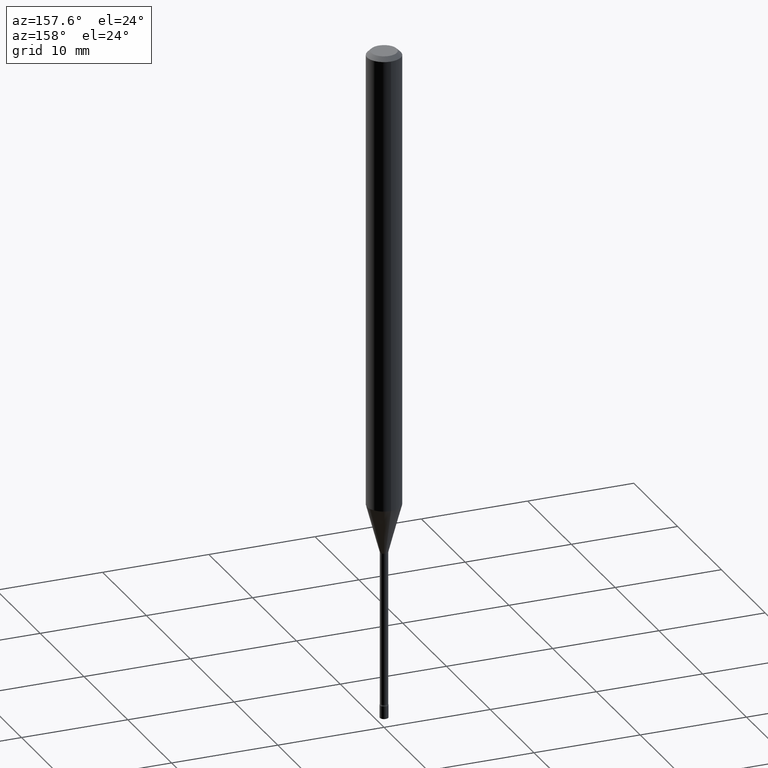
[diagram: clean part render]
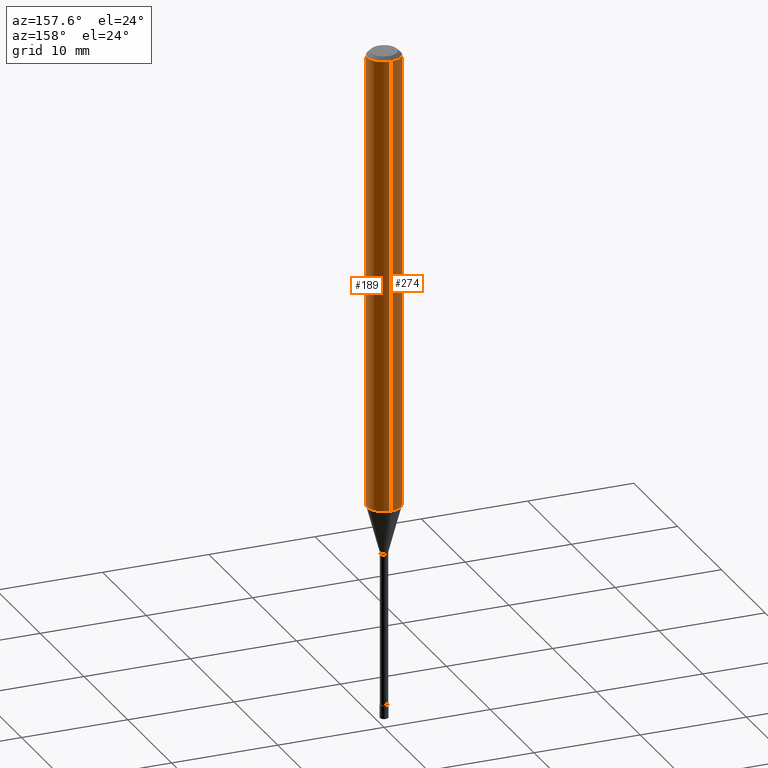
[diagram: same view with one multi-face feature highlighted, each face labeled with its STEP entity id]
A machine part, auxiliary view. The highlighted faces form ONE feature: a constant-radius fillet chain: 2 tangent blend faces with common blend radius 1.5875 mm. The faces share edges in the B-rep.
Their STEP definitions:
[1] entity #274 (Cylinder):
#6 = VECTOR ( 'NONE', #283, 39.37007874015748143 ) ;
#11 = CIRCLE ( 'NONE', #351, 0.06250000000000000000 ) ;
#36 = LINE ( 'NONE', #117, #314 ) ;
#37 = DIRECTION ( 'NONE',  ( -6.982962677686265922E-15, -1.000000000000000000, 3.483106191921935554E-15 ) ) ;
#43 = CARTESIAN_POINT ( 'NONE',  ( -4.364351673553912750E-16, -0.06250000000000005551, -0.01499999999999981209 ) ) ;
#46 = ORIENTED_EDGE ( 'NONE', *, *, #113, .F. ) ;
#59 = CIRCLE ( 'NONE', #86, 0.06250000000000000000 ) ;
#81 = VERTEX_POINT ( 'NONE', #43 ) ;
#86 = AXIS2_PLACEMENT_3D ( 'NONE', #510, #224, #37 ) ;
#105 = LINE ( 'NONE', #504, #6 ) ;
#113 = EDGE_CURVE ( 'NONE', #214, #391, #36, .T. ) ;
#117 = CARTESIAN_POINT ( 'NONE',  ( 4.440892098500625669E-16, 0.06250000000000000000, -2.182168642905131415E-16 ) ) ;
#122 = CARTESIAN_POINT ( 'NONE',  ( 0.000000000000000000, 0.000000000000000000, 0.000000000000000000 ) ) ;
#138 = ORIENTED_EDGE ( 'NONE', *, *, #263, .T. ) ;
#166 = ORIENTED_EDGE ( 'NONE', *, *, #417, .F. ) ;
#169 = DIRECTION ( 'NONE',  ( -2.445476843711301274E-29, 3.491469828648210264E-15, 1.000000000000000000 ) ) ;
#200 = CARTESIAN_POINT ( 'NONE',  ( -4.364351673553500570E-16, -0.06250000000000595357, -1.701048163777072464 ) ) ;
#204 = CARTESIAN_POINT ( 'NONE',  ( 4.440892098501044258E-16, 0.06249999999999995143, -0.01500000000000024751 ) ) ;
#214 = VERTEX_POINT ( 'NONE', #256 ) ;
#216 = CARTESIAN_POINT ( 'NONE',  ( 4.159873894554460783E-29, -5.939158340905088868E-15, -1.701048163777072908 ) ) ;
#224 = DIRECTION ( 'NONE',  ( -2.445476843711301274E-29, 3.491469828648210264E-15, 1.000000000000000000 ) ) ;
#225 = DIRECTION ( 'NONE',  ( -6.982962677686265922E-15, -1.000000000000000000, 4.370956789862821150E-15 ) ) ;
#256 = CARTESIAN_POINT ( 'NONE',  ( 4.440892098501039328E-16, 0.06249999999999404643, -1.701048163777073130 ) ) ;
#263 = EDGE_CURVE ( 'NONE', #214, #509, #11, .T. ) ;
#274 = ADVANCED_FACE ( 'NONE', ( #313 ), #379, .T. ) ;
#283 = DIRECTION ( 'NONE',  ( -2.445476843711301274E-29, 3.491469828648210264E-15, 1.000000000000000000 ) ) ;
#305 = DIRECTION ( 'NONE',  ( -6.982962677686265922E-15, -1.000000000000000000, 3.491469828648210264E-15 ) ) ;
#306 = EDGE_CURVE ( 'NONE', #509, #81, #105, .T. ) ;
#313 = FACE_OUTER_BOUND ( 'NONE', #387, .T. ) ;
#314 = VECTOR ( 'NONE', #424, 39.37007874015748143 ) ;
#351 = AXIS2_PLACEMENT_3D ( 'NONE', #216, #488, #225 ) ;
#364 = AXIS2_PLACEMENT_3D ( 'NONE', #122, #169, #305 ) ;
#379 = CYLINDRICAL_SURFACE ( 'NONE', #364, 0.06250000000000000000 ) ;
#380 = ORIENTED_EDGE ( 'NONE', *, *, #306, .T. ) ;
#387 = EDGE_LOOP ( 'NONE', ( #46, #138, #380, #166 ) ) ;
#391 = VERTEX_POINT ( 'NONE', #204 ) ;
#417 = EDGE_CURVE ( 'NONE', #391, #81, #59, .T. ) ;
#424 = DIRECTION ( 'NONE',  ( -2.445476843711301274E-29, 3.491469828648210264E-15, 1.000000000000000000 ) ) ;
#488 = DIRECTION ( 'NONE',  ( -2.445476843711301274E-29, 3.491469828648210264E-15, 1.000000000000000000 ) ) ;
#504 = CARTESIAN_POINT ( 'NONE',  ( -4.364351673553916201E-16, -0.06250000000000000000, 2.182168642905131415E-16 ) ) ;
#509 = VERTEX_POINT ( 'NONE', #200 ) ;
#510 = CARTESIAN_POINT ( 'NONE',  ( 3.668215265566959268E-31, -5.237204742972325603E-17, -0.01500000000000003067 ) ) ;
[2] entity #189 (Cylinder):
#6 = VECTOR ( 'NONE', #283, 39.37007874015748143 ) ;
#17 = ORIENTED_EDGE ( 'NONE', *, *, #306, .F. ) ;
#28 = AXIS2_PLACEMENT_3D ( 'NONE', #65, #335, #442 ) ;
#36 = LINE ( 'NONE', #117, #314 ) ;
#43 = CARTESIAN_POINT ( 'NONE',  ( -4.364351673553912750E-16, -0.06250000000000005551, -0.01499999999999981209 ) ) ;
#48 = EDGE_LOOP ( 'NONE', ( #91, #453, #501, #17 ) ) ;
#58 = DIRECTION ( 'NONE',  ( -2.445476843711301274E-29, 3.491469828648210264E-15, 1.000000000000000000 ) ) ;
#65 = CARTESIAN_POINT ( 'NONE',  ( 3.668215265566959268E-31, -5.237204742972325603E-17, -0.01500000000000003067 ) ) ;
#81 = VERTEX_POINT ( 'NONE', #43 ) ;
#82 = FACE_OUTER_BOUND ( 'NONE', #48, .T. ) ;
#91 = ORIENTED_EDGE ( 'NONE', *, *, #482, .T. ) ;
#94 = AXIS2_PLACEMENT_3D ( 'NONE', #103, #58, #151 ) ;
#103 = CARTESIAN_POINT ( 'NONE',  ( 0.000000000000000000, 0.000000000000000000, 0.000000000000000000 ) ) ;
#105 = LINE ( 'NONE', #504, #6 ) ;
#113 = EDGE_CURVE ( 'NONE', #214, #391, #36, .T. ) ;
#117 = CARTESIAN_POINT ( 'NONE',  ( 4.440892098500625669E-16, 0.06250000000000000000, -2.182168642905131415E-16 ) ) ;
#151 = DIRECTION ( 'NONE',  ( -6.982962677686265922E-15, -1.000000000000000000, 3.491469828648210264E-15 ) ) ;
#153 = DIRECTION ( 'NONE',  ( -2.445476843711301274E-29, 3.491469828648210264E-15, 1.000000000000000000 ) ) ;
#187 = CIRCLE ( 'NONE', #235, 0.06250000000000000000 ) ;
#189 = ADVANCED_FACE ( 'NONE', ( #82 ), #262, .T. ) ;
#200 = CARTESIAN_POINT ( 'NONE',  ( -4.364351673553500570E-16, -0.06250000000000595357, -1.701048163777072464 ) ) ;
#204 = CARTESIAN_POINT ( 'NONE',  ( 4.440892098501044258E-16, 0.06249999999999995143, -0.01500000000000024751 ) ) ;
#214 = VERTEX_POINT ( 'NONE', #256 ) ;
#235 = AXIS2_PLACEMENT_3D ( 'NONE', #363, #153, #403 ) ;
#256 = CARTESIAN_POINT ( 'NONE',  ( 4.440892098501039328E-16, 0.06249999999999404643, -1.701048163777073130 ) ) ;
#262 = CYLINDRICAL_SURFACE ( 'NONE', #94, 0.06250000000000000000 ) ;
#283 = DIRECTION ( 'NONE',  ( -2.445476843711301274E-29, 3.491469828648210264E-15, 1.000000000000000000 ) ) ;
#306 = EDGE_CURVE ( 'NONE', #509, #81, #105, .T. ) ;
#314 = VECTOR ( 'NONE', #424, 39.37007874015748143 ) ;
#335 = DIRECTION ( 'NONE',  ( -2.445476843711301274E-29, 3.491469828648210264E-15, 1.000000000000000000 ) ) ;
#363 = CARTESIAN_POINT ( 'NONE',  ( 4.159873894554460783E-29, -5.939158340905088868E-15, -1.701048163777072908 ) ) ;
#391 = VERTEX_POINT ( 'NONE', #204 ) ;
#403 = DIRECTION ( 'NONE',  ( -6.982962677686265922E-15, -1.000000000000000000, 4.370956789862821150E-15 ) ) ;
#419 = CIRCLE ( 'NONE', #28, 0.06250000000000000000 ) ;
#424 = DIRECTION ( 'NONE',  ( -2.445476843711301274E-29, 3.491469828648210264E-15, 1.000000000000000000 ) ) ;
#442 = DIRECTION ( 'NONE',  ( -6.982962677686265922E-15, -1.000000000000000000, 3.483106191921935554E-15 ) ) ;
#453 = ORIENTED_EDGE ( 'NONE', *, *, #113, .T. ) ;
#465 = EDGE_CURVE ( 'NONE', #81, #391, #419, .T. ) ;
#482 = EDGE_CURVE ( 'NONE', #509, #214, #187, .T. ) ;
#501 = ORIENTED_EDGE ( 'NONE', *, *, #465, .F. ) ;
#504 = CARTESIAN_POINT ( 'NONE',  ( -4.364351673553916201E-16, -0.06250000000000000000, 2.182168642905131415E-16 ) ) ;
#509 = VERTEX_POINT ( 'NONE', #200 ) ;